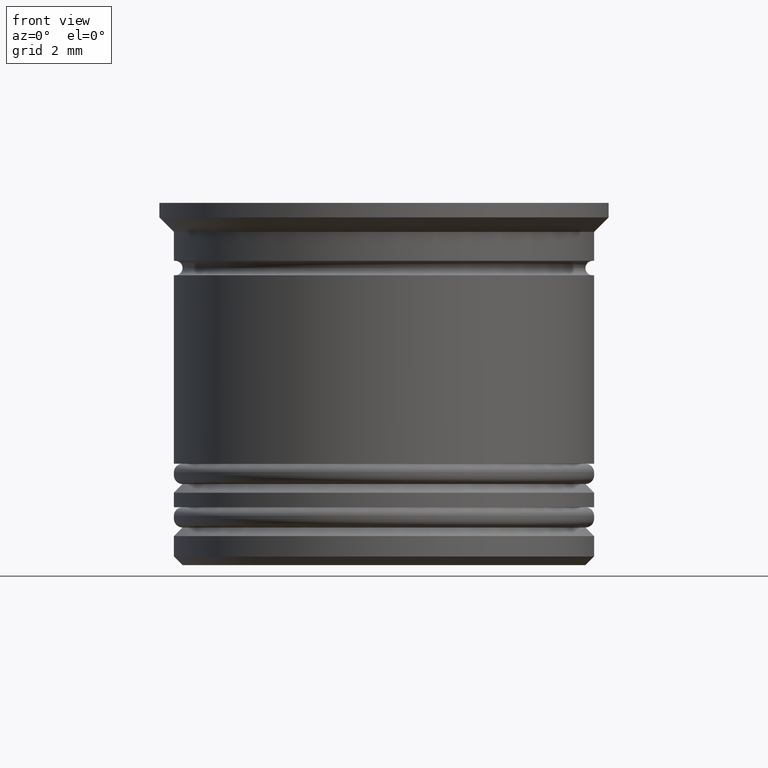
[diagram: clean part render]
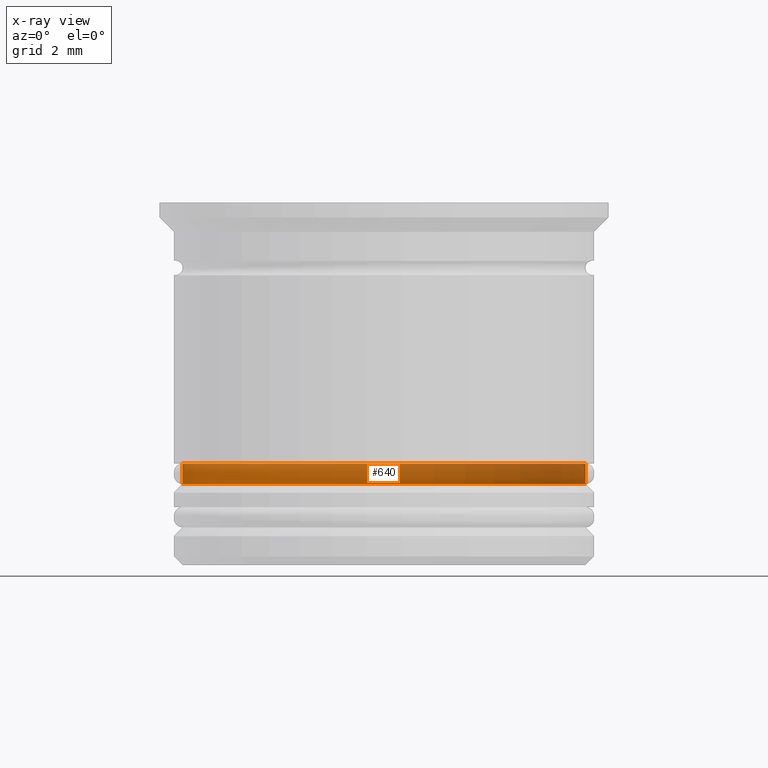
[diagram: x-ray — body ghosted, one internal face saturated and labeled with its STEP entity id]
A machine part, front view, then the same camera in x-ray: the body is ghosted and one INTERNAL B-rep face — a face not visible from any outside direction — is saturated and labeled: STEP entity #640.
In plain terms, the highlighted cylindrical surface (partial cylindrical patch) has radius 6.95 mm, axis along (-0, -0, 1).
Its self-contained STEP definition (entity closure, byte-faithful):
#37 = LINE ( 'NONE', #1569, #61 ) ;
#57 = CARTESIAN_POINT ( 'NONE',  ( 0.000000000000000000, 0.000000000000000000, -9.700000000000006395 ) ) ;
#61 = VECTOR ( 'NONE', #1169, 1000.000000000000000 ) ;
#71 = CIRCLE ( 'NONE', #1160, 6.950000000000000178 ) ;
#325 = VERTEX_POINT ( 'NONE', #1119 ) ;
#370 = FACE_OUTER_BOUND ( 'NONE', #638, .T. ) ;
#381 = EDGE_CURVE ( 'NONE', #325, #946, #37, .T. ) ;
#417 = CYLINDRICAL_SURFACE ( 'NONE', #1309, 6.950000000000000178 ) ;
#474 = VERTEX_POINT ( 'NONE', #736 ) ;
#516 = DIRECTION ( 'NONE',  ( -1.000000000000000000, 0.000000000000000000, 0.000000000000000000 ) ) ;
#520 = ORIENTED_EDGE ( 'NONE', *, *, #546, .F. ) ;
#525 = AXIS2_PLACEMENT_3D ( 'NONE', #1626, #877, #1253 ) ;
#546 = EDGE_CURVE ( 'NONE', #946, #1285, #1220, .T. ) ;
#578 = CARTESIAN_POINT ( 'NONE',  ( 6.950000000000000178, 0.000000000000000000, -9.000000000000001776 ) ) ;
#638 = EDGE_LOOP ( 'NONE', ( #1254, #1176, #520, #1491 ) ) ;
#640 = ADVANCED_FACE ( 'NONE', ( #370 ), #417, .T. ) ;
#660 = VECTOR ( 'NONE', #1773, 1000.000000000000000 ) ;
#736 = CARTESIAN_POINT ( 'NONE',  ( -6.950000000000000178, 8.511295254074105418E-16, -9.700000000000006395 ) ) ;
#827 = DIRECTION ( 'NONE',  ( -0.000000000000000000, -0.000000000000000000, 1.000000000000000000 ) ) ;
#877 = DIRECTION ( 'NONE',  ( -0.000000000000000000, -0.000000000000000000, 1.000000000000000000 ) ) ;
#946 = VERTEX_POINT ( 'NONE', #578 ) ;
#979 = DIRECTION ( 'NONE',  ( 1.000000000000000000, 0.000000000000000000, 0.000000000000000000 ) ) ;
#995 = CARTESIAN_POINT ( 'NONE',  ( 0.000000000000000000, 0.000000000000000000, 0.000000000000000000 ) ) ;
#1011 = DIRECTION ( 'NONE',  ( -0.000000000000000000, -0.000000000000000000, 1.000000000000000000 ) ) ;
#1057 = EDGE_CURVE ( 'NONE', #474, #1285, #1757, .T. ) ;
#1119 = CARTESIAN_POINT ( 'NONE',  ( 6.950000000000000178, 0.000000000000000000, -9.700000000000006395 ) ) ;
#1160 = AXIS2_PLACEMENT_3D ( 'NONE', #57, #827, #516 ) ;
#1169 = DIRECTION ( 'NONE',  ( -0.000000000000000000, -0.000000000000000000, 1.000000000000000000 ) ) ;
#1176 = ORIENTED_EDGE ( 'NONE', *, *, #1057, .T. ) ;
#1220 = CIRCLE ( 'NONE', #525, 6.950000000000000178 ) ;
#1253 = DIRECTION ( 'NONE',  ( 1.000000000000000000, 0.000000000000000000, 0.000000000000000000 ) ) ;
#1254 = ORIENTED_EDGE ( 'NONE', *, *, #1650, .T. ) ;
#1285 = VERTEX_POINT ( 'NONE', #1444 ) ;
#1309 = AXIS2_PLACEMENT_3D ( 'NONE', #995, #1011, #979 ) ;
#1444 = CARTESIAN_POINT ( 'NONE',  ( -6.950000000000000178, 8.511295254074105418E-16, -9.000000000000001776 ) ) ;
#1450 = CARTESIAN_POINT ( 'NONE',  ( -6.950000000000000178, 8.511295254074105418E-16, 0.000000000000000000 ) ) ;
#1491 = ORIENTED_EDGE ( 'NONE', *, *, #381, .F. ) ;
#1569 = CARTESIAN_POINT ( 'NONE',  ( 6.950000000000000178, 0.000000000000000000, 0.000000000000000000 ) ) ;
#1626 = CARTESIAN_POINT ( 'NONE',  ( 0.000000000000000000, 0.000000000000000000, -9.000000000000001776 ) ) ;
#1650 = EDGE_CURVE ( 'NONE', #325, #474, #71, .T. ) ;
#1757 = LINE ( 'NONE', #1450, #660 ) ;
#1773 = DIRECTION ( 'NONE',  ( -0.000000000000000000, -0.000000000000000000, 1.000000000000000000 ) ) ;